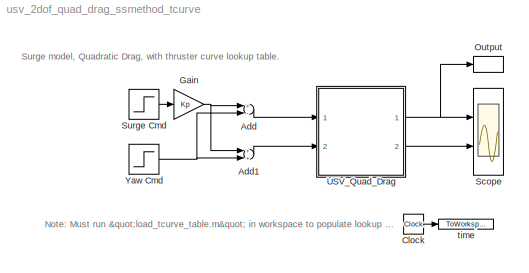
MODEL usv_2dof_quad_drag_ssmethod_tcurve
KIND model
BLOCK [Sum] Add
  InputSameDT = off
  Inputs = +-
  OutDataTypeStr = Inherit: Inherit via internal rule
  Ports = [2, 1]
  SID = 52
  SaturateOnIntegerOverflow = off
BLOCK [Sum] Add1
  InputSameDT = off
  OutDataTypeStr = Inherit: Inherit via internal rule
  Ports = [2, 1]
  SID = 53
  SaturateOnIntegerOverflow = off
BLOCK [Clock] Clock
  SID = 57
BLOCK [Gain] Gain
  Gain = Kp
  OutDataTypeStr = Inherit: Inherit via internal rule
  ParamDataTypeStr = Inherit: Inherit via internal rule
  SID = 55
  SaturateOnIntegerOverflow = off
BLOCK [ToWorkspace] Output
  FixptAsFi = on
  MaxDataPoints = inf
  Ports = [1]
  SID = 56
  SampleTime = -1
  Save2DSignal = 3-D array (concatenate along third dimension)
  VariableName = surge
BLOCK [Scope] Scope
  NumInputPorts = 2
  Ports = [2]
  SID = 15
  ScopeSpecificationString = Simulink.scopes.TimeScopeBlockCfg('CurrentConfiguration', extmgr.ConfigurationSet(extmgr.Configuration('Core','General UI',true),extmgr.Configuration('Core','Source UI',true),extmgr.Configuration('Sources','WiredSimulink',true),extmgr.Configuration('Visuals','Time Domain',true,'SerializedDisplays',{struct('MinYLimReal','-0.19374','MaxYLimReal','1.7437','YLabelReal','','MinYLimMag','0.00000','MaxYL...<+1435ch>
BLOCK [Step] Surge Cmd
  SID = 51
  SampleTime = 0
  Time = 0
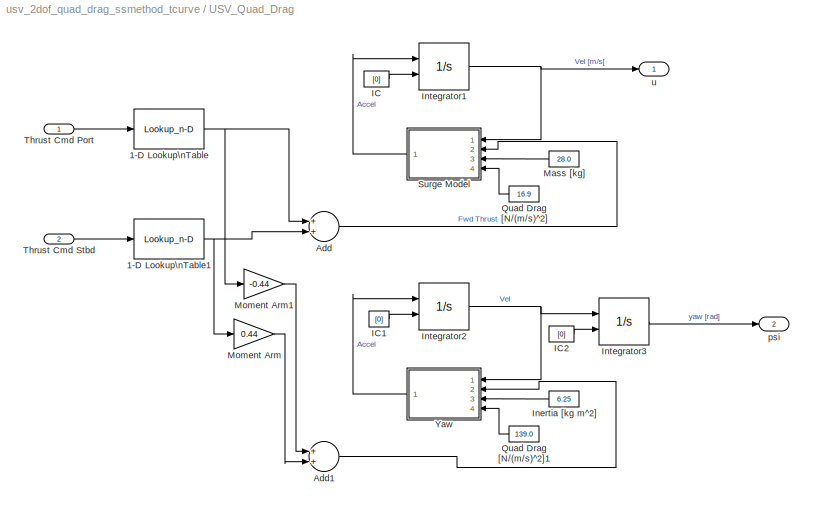
BLOCK [SubSystem] USV_Quad_Drag
  Ports = [2, 2]
  RequestExecContextInheritance = off
  SID = 8
  Variant = off
BLOCK [Lookup_n-D] USV_Quad_Drag/1-D Lookup\nTable
  BreakpointsForDimension1 = breakpoints1
  ExtrapMethod = Clip
  InternalRulePriority = Speed
  NumberOfTableDimensions = 1
  Ports = [1, 1]
  RndMeth = Simplest
  SID = 31
  Table = table_data
  UseLastTableValue = on
BLOCK [Lookup_n-D] USV_Quad_Drag/1-D Lookup\nTable1
  BreakpointsForDimension1 = breakpoints1
  ExtrapMethod = Clip
  InternalRulePriority = Speed
  NumberOfTableDimensions = 1
  Ports = [1, 1]
  RndMeth = Simplest
  SID = 37
  Table = table_data
  UseLastTableValue = on
BLOCK [Sum] USV_Quad_Drag/Add
  InputSameDT = off
  OutDataTypeStr = Inherit: Inherit via internal rule
  Ports = [2, 1]
  SID = 38
  SaturateOnIntegerOverflow = off
BLOCK [Sum] USV_Quad_Drag/Add1
  InputSameDT = off
  OutDataTypeStr = Inherit: Inherit via internal rule
  Ports = [2, 1]
  SID = 39
  SaturateOnIntegerOverflow = off
BLOCK [Constant] USV_Quad_Drag/IC
  SID = 28
  Value = [0]
BLOCK [Constant] USV_Quad_Drag/IC1
  SID = 40
  Value = [0]
BLOCK [Constant] USV_Quad_Drag/IC2
  SID = 47
  Value = [0]
BLOCK [Constant] USV_Quad_Drag/Inertia [kg m^2]
  SID = 42
  Value = 6.25
BLOCK [Integrator] USV_Quad_Drag/Integrator1
  InitialConditionSource = external
  Ports = [2, 1]
  SID = 27
BLOCK [Integrator] USV_Quad_Drag/Integrator2
  InitialConditionSource = external
  Ports = [2, 1]
  SID = 41
BLOCK [Integrator] USV_Quad_Drag/Integrator3
  InitialConditionSource = external
  Ports = [2, 1]
  SID = 46
BLOCK [Constant] USV_Quad_Drag/Mass [kg]
  SID = 34
  Value = 28.0
BLOCK [Gain] USV_Quad_Drag/Moment Arm
  Gain = 0.44
  OutDataTypeStr = Inherit: Inherit via internal rule
  ParamDataTypeStr = Inherit: Inherit via internal rule
  SID = 49
  SaturateOnIntegerOverflow = off
BLOCK [Gain] USV_Quad_Drag/Moment Arm1
  Gain = -0.44
  OutDataTypeStr = Inherit: Inherit via internal rule
  ParamDataTypeStr = Inherit: Inherit via internal rule
  SID = 50
  SaturateOnIntegerOverflow = off
BLOCK [Constant] USV_Quad_Drag/Quad Drag [N//(m//s)^2]
  SID = 35
  Value = 16.9
BLOCK [Constant] USV_Quad_Drag/Quad Drag [N//(m//s)^2]1
  SID = 43
  Value = 139.0
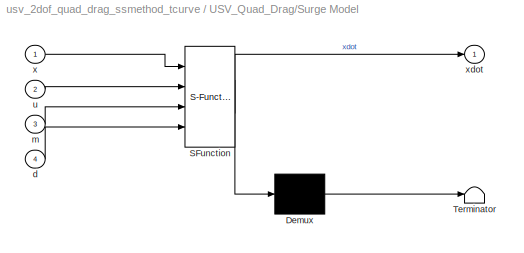
BLOCK [SubSystem] USV_Quad_Drag/Surge Model
  ErrorFcn = Stateflow.Translate.translate
  PermitHierarchicalResolution = ExplicitOnly
  Ports = [4, 1]
  RequestExecContextInheritance = off
  SFBlockType = MATLAB Function
  SID = 25
  TreatAsAtomicUnit = on
  Variant = off
BLOCK [Demux] USV_Quad_Drag/Surge Model/ Demux 
  Outputs = 1
  Ports = [1, 1]
  SID = 25::17
BLOCK [S-Function] USV_Quad_Drag/Surge Model/ SFunction 
  EnableBusSupport = on
  FunctionName = sf_sfun
  PortCounts = [4 2]
  Ports = [4, 2]
  SFunctionDeploymentMode = off
  SID = 25::16
  Tag = Stateflow S-Function usv_2dof_quad_drag_ssmethod_tcurve 2
BLOCK [Terminator] USV_Quad_Drag/Surge Model/ Terminator 
  SID = 25::18
BLOCK [Inport] USV_Quad_Drag/Surge Model/d
  IconDisplay = Port number
  Port = 4
  SID = 25::21
BLOCK [Inport] USV_Quad_Drag/Surge Model/m
  IconDisplay = Port number
  Port = 3
  SID = 25::20
BLOCK [Inport] USV_Quad_Drag/Surge Model/u
  IconDisplay = Port number
  Port = 2
  SID = 25::1
BLOCK [Inport] USV_Quad_Drag/Surge Model/x
  IconDisplay = Port number
  SID = 25::19
BLOCK [Outport] USV_Quad_Drag/Surge Model/xdot
  IconDisplay = Port number
  SID = 25::5
BLOCK [Inport] USV_Quad_Drag/Thrust Cmd Port
  IconDisplay = Port number
  SID = 9
BLOCK [Inport] USV_Quad_Drag/Thrust Cmd Stbd
  IconDisplay = Port number
  Port = 2
  SID = 36
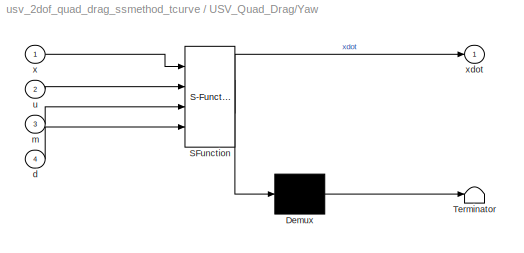
BLOCK [SubSystem] USV_Quad_Drag/Yaw
  ErrorFcn = Stateflow.Translate.translate
  PermitHierarchicalResolution = ExplicitOnly
  Ports = [4, 1]
  RequestExecContextInheritance = off
  SFBlockType = MATLAB Function
  SID = 44
  TreatAsAtomicUnit = on
  Variant = off
BLOCK [Demux] USV_Quad_Drag/Yaw/ Demux 
  Outputs = 1
  Ports = [1, 1]
  SID = 44::17
BLOCK [S-Function] USV_Quad_Drag/Yaw/ SFunction 
  EnableBusSupport = on
  FunctionName = sf_sfun
  PortCounts = [4 2]
  Ports = [4, 2]
  SFunctionDeploymentMode = off
  SID = 44::16
  Tag = Stateflow S-Function usv_2dof_quad_drag_ssmethod_tcurve 1
BLOCK [Terminator] USV_Quad_Drag/Yaw/ Terminator 
  SID = 44::18
BLOCK [Inport] USV_Quad_Drag/Yaw/d
  IconDisplay = Port number
  Port = 4
  SID = 44::21
BLOCK [Inport] USV_Quad_Drag/Yaw/m
  IconDisplay = Port number
  Port = 3
  SID = 44::20
BLOCK [Inport] USV_Quad_Drag/Yaw/u
  IconDisplay = Port number
  Port = 2
  SID = 44::1
BLOCK [Inport] USV_Quad_Drag/Yaw/x
  IconDisplay = Port number
  SID = 44::19
BLOCK [Outport] USV_Quad_Drag/Yaw/xdot
  IconDisplay = Port number
  SID = 44::5
BLOCK [Outport] USV_Quad_Drag/psi
  IconDisplay = Port number
  Port = 2
  SID = 45
BLOCK [Outport] USV_Quad_Drag/u
  IconDisplay = Port number
  SID = 10
BLOCK [Step] Yaw Cmd
  After = 0
  SID = 54
  SampleTime = 0
BLOCK [ToWorkspace] time
  FixptAsFi = on
  MaxDataPoints = inf
  Ports = [1]
  SID = 59
  SampleTime = -1
  Save2DSignal = 3-D array (concatenate along third dimension)
  VariableName = time
ANNOTATION (root): \n \n Note: Must run "load_tcurve_table.m" in workspace to populate lookup table!
ANNOTATION (root): Surge model, Quadratic Drag, with thruster curve lookup table.
LINE Add1:1 -> USV_Quad_Drag:2
LINE Add:1 -> USV_Quad_Drag:1
LINE Clock:1 -> time:1
NET Gain:1 -> Add1:1, Add:1
LINE Surge Cmd:1 -> Gain:1
NET USV_Quad_Drag/1-D Lookup\nTable1:1 -> USV_Quad_Drag/Add:2, USV_Quad_Drag/Moment Arm:1
NET USV_Quad_Drag/1-D Lookup\nTable:1 -> USV_Quad_Drag/Add:1, USV_Quad_Drag/Moment Arm1:1
LINE USV_Quad_Drag/Add1:1 -> USV_Quad_Drag/Yaw:2
LINE USV_Quad_Drag/Add:1 -> USV_Quad_Drag/Surge Model:2
LINE USV_Quad_Drag/IC1:1 -> USV_Quad_Drag/Integrator2:2
LINE USV_Quad_Drag/IC2:1 -> USV_Quad_Drag/Integrator3:2
LINE USV_Quad_Drag/IC:1 -> USV_Quad_Drag/Integrator1:2
LINE USV_Quad_Drag/Inertia [kg m^2]:1 -> USV_Quad_Drag/Yaw:3
NET USV_Quad_Drag/Integrator1:1 -> USV_Quad_Drag/Surge Model:1, USV_Quad_Drag/u:1
NET USV_Quad_Drag/Integrator2:1 -> USV_Quad_Drag/Integrator3:1, USV_Quad_Drag/Yaw:1
LINE USV_Quad_Drag/Integrator3:1 -> USV_Quad_Drag/psi:1
LINE USV_Quad_Drag/Mass [kg]:1 -> USV_Quad_Drag/Surge Model:3
LINE USV_Quad_Drag/Moment Arm1:1 -> USV_Quad_Drag/Add1:1
LINE USV_Quad_Drag/Moment Arm:1 -> USV_Quad_Drag/Add1:2
LINE USV_Quad_Drag/Quad Drag [N//(m//s)^2]1:1 -> USV_Quad_Drag/Yaw:4
LINE USV_Quad_Drag/Quad Drag [N//(m//s)^2]:1 -> USV_Quad_Drag/Surge Model:4
LINE USV_Quad_Drag/Surge Model/ Demux :1 -> USV_Quad_Drag/Surge Model/ Terminator :1
LINE USV_Quad_Drag/Surge Model/ SFunction :1 -> USV_Quad_Drag/Surge Model/ Demux :1
LINE USV_Quad_Drag/Surge Model/ SFunction :2 -> USV_Quad_Drag/Surge Model/xdot:1
LINE USV_Quad_Drag/Surge Model/d:1 -> USV_Quad_Drag/Surge Model/ SFunction :4
LINE USV_Quad_Drag/Surge Model/m:1 -> USV_Quad_Drag/Surge Model/ SFunction :3
LINE USV_Quad_Drag/Surge Model/u:1 -> USV_Quad_Drag/Surge Model/ SFunction :2
LINE USV_Quad_Drag/Surge Model/x:1 -> USV_Quad_Drag/Surge Model/ SFunction :1
LINE USV_Quad_Drag/Surge Model:1 -> USV_Quad_Drag/Integrator1:1
LINE USV_Quad_Drag/Thrust Cmd Port:1 -> USV_Quad_Drag/1-D Lookup\nTable:1
LINE USV_Quad_Drag/Thrust Cmd Stbd:1 -> USV_Quad_Drag/1-D Lookup\nTable1:1
LINE USV_Quad_Drag/Yaw/ Demux :1 -> USV_Quad_Drag/Yaw/ Terminator :1
LINE USV_Quad_Drag/Yaw/ SFunction :1 -> USV_Quad_Drag/Yaw/ Demux :1
LINE USV_Quad_Drag/Yaw/ SFunction :2 -> USV_Quad_Drag/Yaw/xdot:1
LINE USV_Quad_Drag/Yaw/d:1 -> USV_Quad_Drag/Yaw/ SFunction :4
LINE USV_Quad_Drag/Yaw/m:1 -> USV_Quad_Drag/Yaw/ SFunction :3
LINE USV_Quad_Drag/Yaw/u:1 -> USV_Quad_Drag/Yaw/ SFunction :2
LINE USV_Quad_Drag/Yaw/x:1 -> USV_Quad_Drag/Yaw/ SFunction :1
LINE USV_Quad_Drag/Yaw:1 -> USV_Quad_Drag/Integrator2:1
NET USV_Quad_Drag:1 -> Output:1, Scope:1
LINE USV_Quad_Drag:2 -> Scope:2
NET Yaw Cmd:1 -> Add1:2, Add:2
note: NET lines group one-source signal fan-out (src -> all destinations, sorted); 1:1 wires keep LINE
CHART USV_Quad_Drag/Yaw states=1 transitions=1
  STATE_LABEL 'eML_blk_kernel()'
CHART USV_Quad_Drag/Surge Model states=1 transitions=1
  STATE_LABEL 'eML_blk_kernel()'
